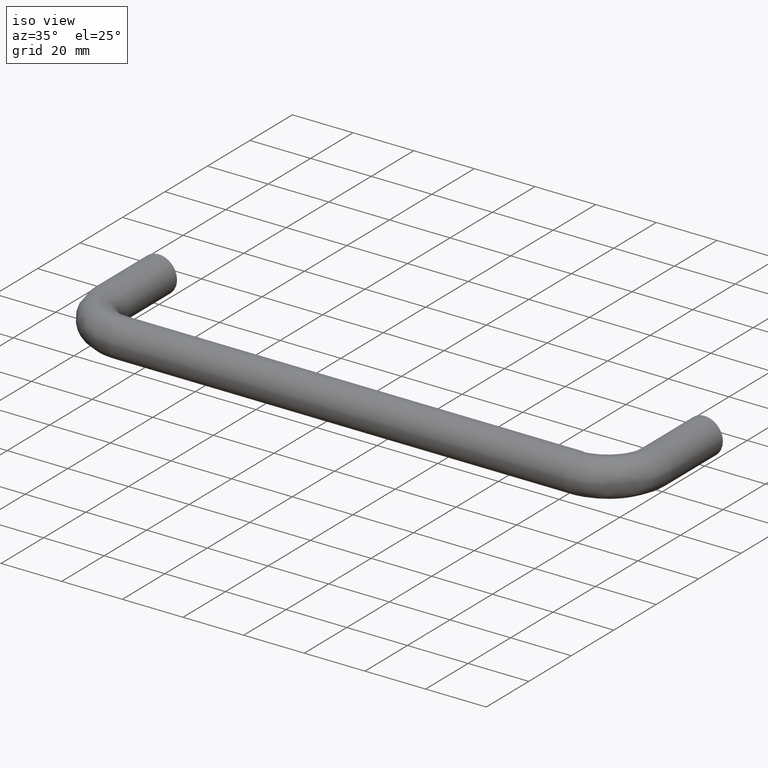
[diagram: clean part render]
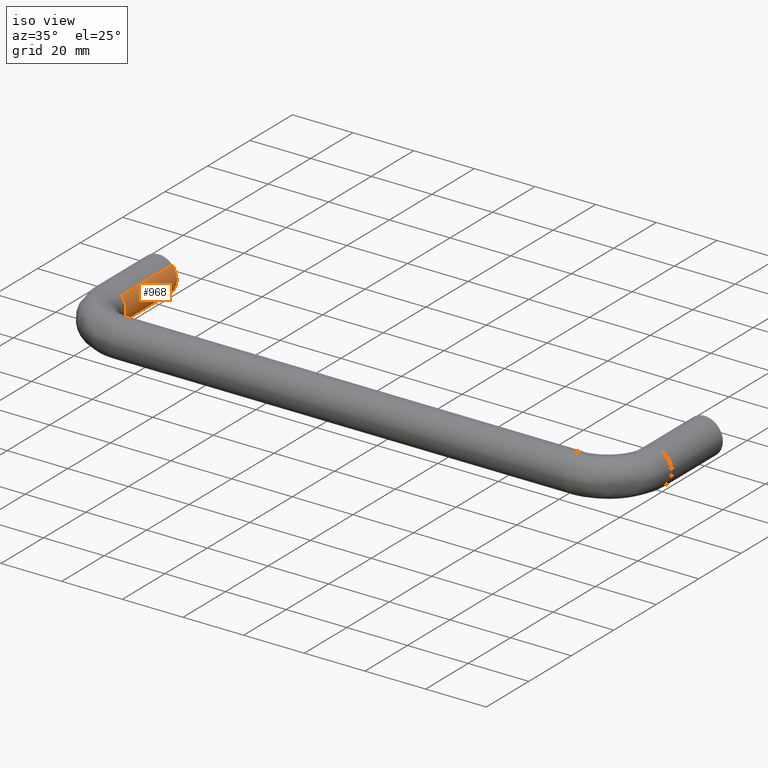
[diagram: same view with one face highlighted and labeled with its STEP entity id]
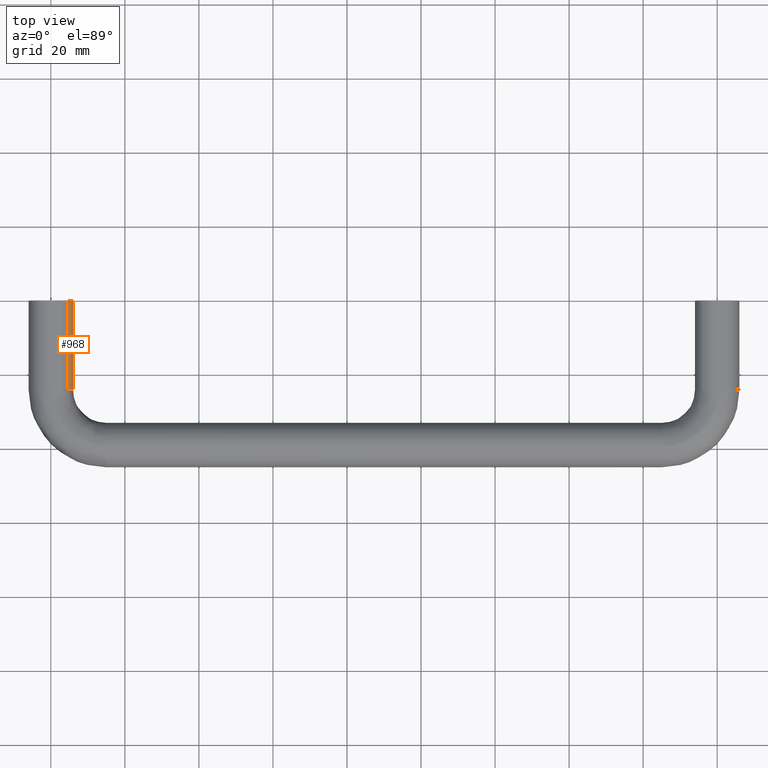
[diagram: same view with one face highlighted and labeled with its STEP entity id]
A machine part, iso view. The second image highlights one B-rep face of the part: STEP entity #968.
A second angle (top view) of the same face is appended — the face is thin or edge-on in the first view.
In plain terms, the highlighted face is a freeform B-spline surface patch.
Its self-contained STEP definition (entity closure, byte-faithful):
#870=CARTESIAN_POINT('',(2.858452214625503,0.600000000015521,-5.275615613930971));
#871=CARTESIAN_POINT('',(2.881914728903769,0.600000000015521,-5.262630804775241));
#872=CARTESIAN_POINT('',(3.528453658424199,0.600000000015521,-4.904818146165622));
#873=CARTESIAN_POINT('',(4.053541245693961,0.600000000015521,-4.423664020860743));
#874=CARTESIAN_POINT('',(8.477205266554705,0.600000000015522,-0.370122775166782));
#875=CARTESIAN_POINT('',(4.407069002992790,0.600000000015522,4.071651529768659));
#876=CARTESIAN_POINT('',(4.390530172574747,0.600000000015521,4.089700496001606));
#877=CARTESIAN_POINT('',(2.858452214625507,-24.615000000636691,-5.275615613930971));
#878=CARTESIAN_POINT('',(2.881914728903774,-24.615000000636694,-5.262630804775241));
#879=CARTESIAN_POINT('',(3.528453658424203,-24.615000000636691,-4.904818146165622));
#880=CARTESIAN_POINT('',(4.053541245693965,-24.615000000636691,-4.423664020860743));
#881=CARTESIAN_POINT('',(8.477205266554709,-24.615000000636698,-0.370122775166782));
#882=CARTESIAN_POINT('',(4.407069002992794,-24.615000000636709,4.071651529768659));
#883=CARTESIAN_POINT('',(4.390530172574751,-24.615000000636687,4.089700496001606));
#891=(BOUNDED_SURFACE()B_SPLINE_SURFACE(2,1,((#870,#877),(#871,#878),(#872,#879),(#873,#880),(#874,#881),(#875,#882),(#876,#883)),.UNSPECIFIED.,.F.,.F.,.U.)B_SPLINE_SURFACE_WITH_KNOTS((3,1,2,1,3),(2,2),(0.0,0.057669180492771,1.648249260005459,11.589374756959741,11.647028933244140),(0.0,25.215000000652221),.UNSPECIFIED.)GEOMETRIC_REPRESENTATION_ITEM()RATIONAL_B_SPLINE_SURFACE(((0.918959534229402,0.918959534229402),(0.920114918506173,0.920114918506173),(0.953137084989848,0.953137084989848),(1.0,1.0),(0.707106781186548,0.707106781186548),(1.001698652458934,1.001698652458934),(1.003397304917869,1.003397304917869)))REPRESENTATION_ITEM('')SURFACE());
#892=CARTESIAN_POINT('',(2.905318393535143,-24.0,-5.249678564653877));
#893=VERTEX_POINT('',#892);
#894=CARTESIAN_POINT('',(6.000000000000003,-24.0,0.0));
#895=VERTEX_POINT('',#894);
#896=CARTESIAN_POINT('',(2.905318393535143,-23.999999999999996,-5.249678564653877));
#897=CARTESIAN_POINT('',(6.000000000000003,-23.999999999999996,-3.536995534121349));
#898=CARTESIAN_POINT('',(6.000000000000003,-24.0,0.0));
#906=(BOUNDED_CURVE()B_SPLINE_CURVE(2,(#896,#897,#898),.UNSPECIFIED.,.F.,.U.)B_SPLINE_CURVE_WITH_KNOTS((3,3),(0.332484288971161,0.500000000000000),.UNSPECIFIED.)CURVE()GEOMETRIC_REPRESENTATION_ITEM()RATIONAL_B_SPLINE_CURVE((0.870495137452543,0.803743136779756,1.0))REPRESENTATION_ITEM(''));
#907=EDGE_CURVE('',#893,#895,#906,.T.);
#908=ORIENTED_EDGE('',*,*,#907,.F.);
#909=CARTESIAN_POINT('',(2.905309782396585,0.0,-5.249683330279442));
#910=VERTEX_POINT('',#909);
#911=CARTESIAN_POINT('',(2.905309782396585,0.0,-5.249683330279442));
#912=CARTESIAN_POINT('',(2.905318393535143,-24.0,-5.249678564653877));
#913=QUASI_UNIFORM_CURVE('',1,(#911,#912),.UNSPECIFIED.,.F.,.U.);
#914=EDGE_CURVE('',#910,#893,#913,.T.);
#915=ORIENTED_EDGE('',*,*,#914,.F.);
#916=CARTESIAN_POINT('',(6.0,0.0,0.0));
#917=VERTEX_POINT('',#916);
#918=CARTESIAN_POINT('',(2.905309782396584,0.0,-5.249683330279442));
#919=CARTESIAN_POINT('',(6.000000000000001,0.0,-3.537002165154155));
#920=CARTESIAN_POINT('',(6.0,0.0,0.0));
#928=(BOUNDED_CURVE()B_SPLINE_CURVE(2,(#918,#919,#920),.UNSPECIFIED.,.F.,.U.)B_SPLINE_CURVE_WITH_KNOTS((3,3),(0.332484036553738,0.500000000000000),.UNSPECIFIED.)CURVE()GEOMETRIC_REPRESENTATION_ITEM()RATIONAL_B_SPLINE_CURVE((0.870495338620754,0.803742841054351,1.0))REPRESENTATION_ITEM(''));
#929=EDGE_CURVE('',#910,#917,#928,.T.);
#930=ORIENTED_EDGE('',*,*,#929,.T.);
#931=CARTESIAN_POINT('',(4.423666584787512,1.110223E-016,4.053538447655331));
#932=VERTEX_POINT('',#931);
#933=CARTESIAN_POINT('',(6.0,0.0,0.0));
#934=CARTESIAN_POINT('',(6.000000000000001,0.0,2.333270206611333));
#935=CARTESIAN_POINT('',(4.423666584787512,1.110223E-016,4.053538447655331));
#943=(BOUNDED_CURVE()B_SPLINE_CURVE(2,(#933,#934,#935),.UNSPECIFIED.,.F.,.U.)B_SPLINE_CURVE_WITH_KNOTS((3,3),(0.500000000000000,0.618415113599380),.UNSPECIFIED.)CURVE()GEOMETRIC_REPRESENTATION_ITEM()RATIONAL_B_SPLINE_CURVE((1.0,0.861268064886868,0.853959792624003))REPRESENTATION_ITEM(''));
#944=EDGE_CURVE('',#917,#932,#943,.T.);
#945=ORIENTED_EDGE('',*,*,#944,.T.);
#946=CARTESIAN_POINT('',(4.423666547451096,-24.000000000116419,4.053538488362753));
#947=VERTEX_POINT('',#946);
#948=CARTESIAN_POINT('',(4.423666584787512,1.110223E-016,4.053538447655331));
#949=CARTESIAN_POINT('',(4.423666547451096,-24.000000000116419,4.053538488362753));
#950=QUASI_UNIFORM_CURVE('',1,(#948,#949),.UNSPECIFIED.,.F.,.U.);
#951=EDGE_CURVE('',#932,#947,#950,.T.);
#952=ORIENTED_EDGE('',*,*,#951,.T.);
#953=CARTESIAN_POINT('',(6.000000000000003,-24.0,0.0));
#954=CARTESIAN_POINT('',(6.000000000000002,-24.000000000000004,2.333270238378407));
#955=CARTESIAN_POINT('',(4.423666547451097,-24.000000000116430,4.053538488362754));
#963=(BOUNDED_CURVE()B_SPLINE_CURVE(2,(#953,#954,#955),.UNSPECIFIED.,.F.,.U.)B_SPLINE_CURVE_WITH_KNOTS((3,3),(0.500000000000000,0.618415114987918),.UNSPECIFIED.)CURVE()GEOMETRIC_REPRESENTATION_ITEM()RATIONAL_B_SPLINE_CURVE((1.0,0.861268063260095,0.853959792452609))REPRESENTATION_ITEM(''));
#964=EDGE_CURVE('',#895,#947,#963,.T.);
#965=ORIENTED_EDGE('',*,*,#964,.F.);
#966=EDGE_LOOP('',(#908,#915,#930,#945,#952,#965));
#967=FACE_OUTER_BOUND('',#966,.T.);
#968=ADVANCED_FACE('',(#967),#891,.T.);